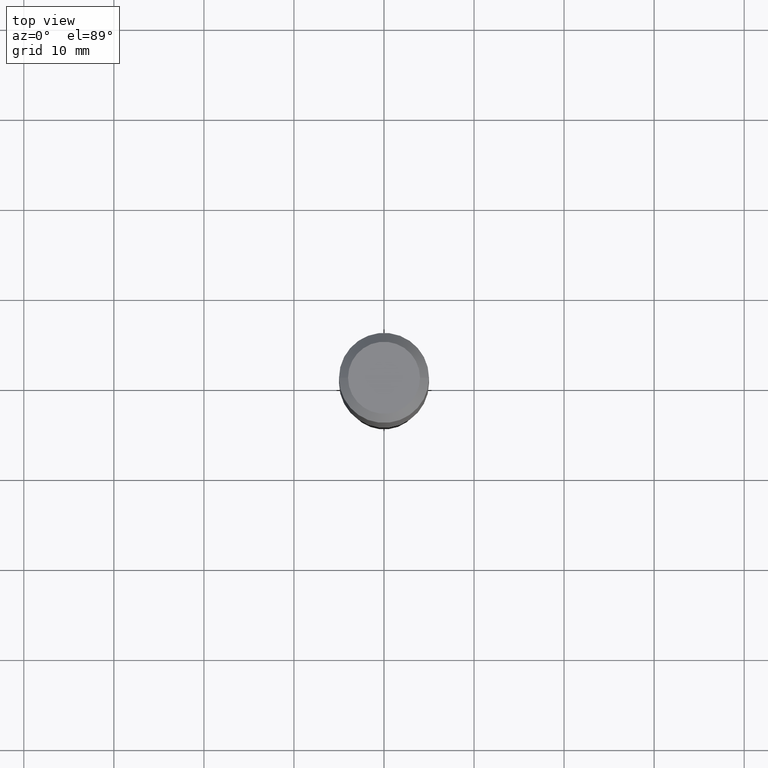
[diagram: clean part render]
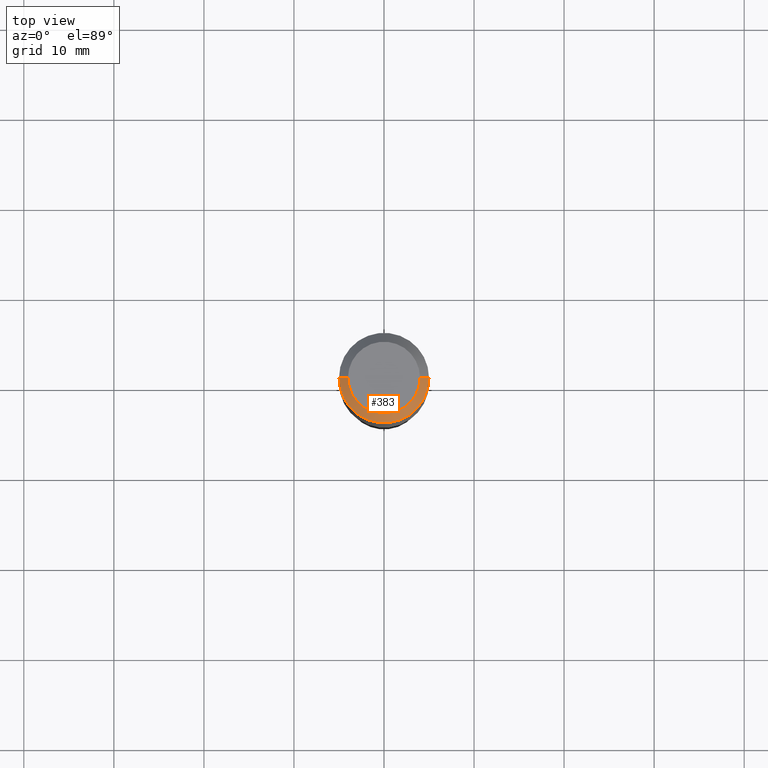
[diagram: same view with one face highlighted and labeled with its STEP entity id]
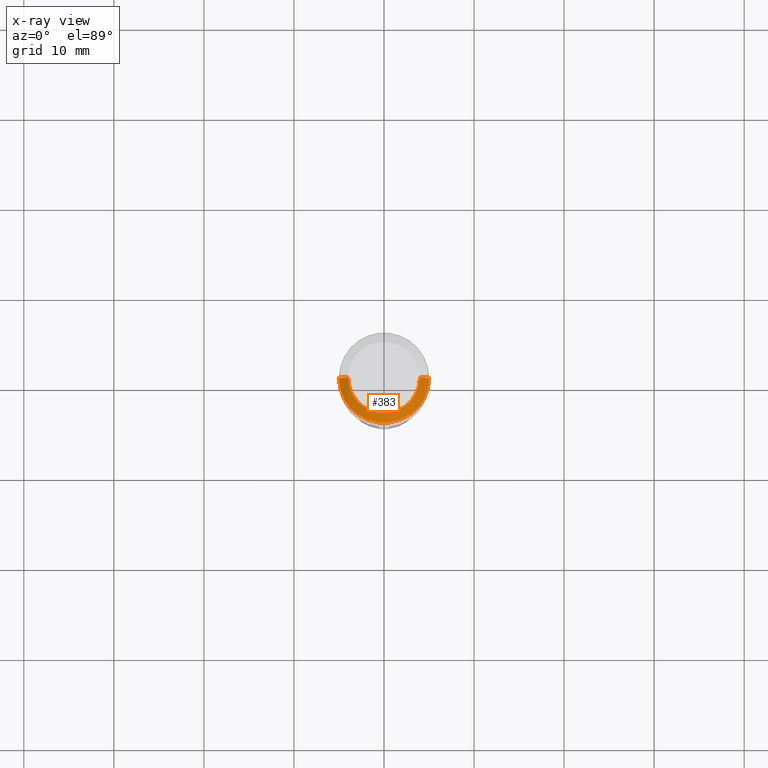
[diagram: x-ray of the same camera — body ghosted, the highlighted face saturated]
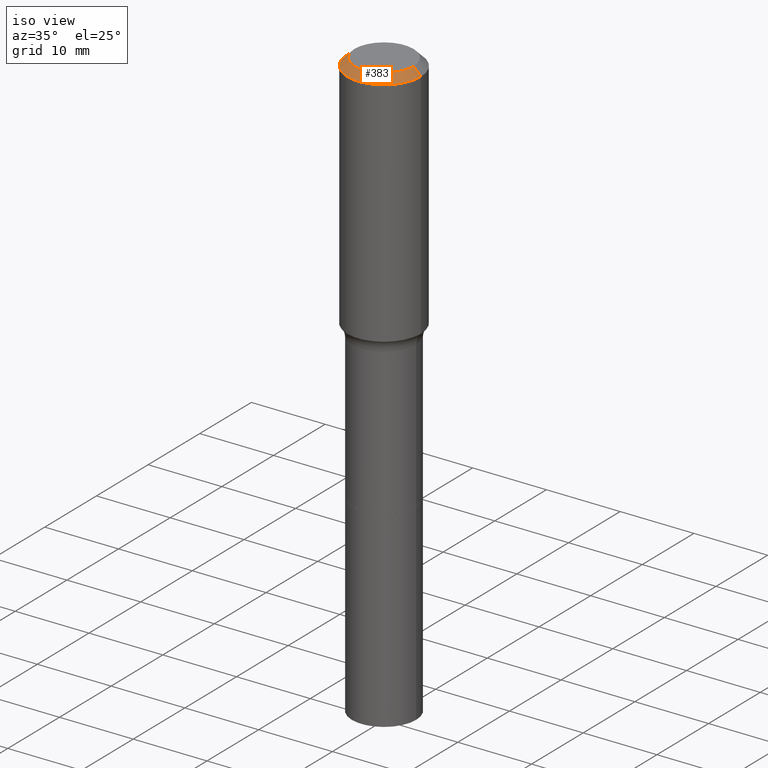
[diagram: same view with one face highlighted and labeled with its STEP entity id]
A machine part, top view. The second image highlights one B-rep face of the part: STEP entity #383.
The next image is the same camera in x-ray: the body ghosted, the highlighted face saturated — about 0% of this face is hidden behind the body in this view.
A second angle (iso view) of the same face is appended — the face is thin or edge-on in the first view.
In plain terms, the highlighted conical surface has half-angle 45 deg.
Its self-contained STEP definition (entity closure, byte-faithful):
#29 = FACE_OUTER_BOUND ( 'NONE', #478, .T. ) ;
#31 = DIRECTION ( 'NONE',  ( -1.000000000000000000, 6.982962677686266711E-15, 0.000000000000000000 ) ) ;
#39 = CARTESIAN_POINT ( 'NONE',  ( -0.1968500000000000527, 1.237136582792286422E-15, -0.03937000000000030059 ) ) ;
#44 = CIRCLE ( 'NONE', #251, 0.1968500000000000527 ) ;
#47 = ORIENTED_EDGE ( 'NONE', *, *, #326, .T. ) ;
#79 = EDGE_CURVE ( 'NONE', #391, #405, #374, .T. ) ;
#107 = ORIENTED_EDGE ( 'NONE', *, *, #194, .F. ) ;
#120 = AXIS2_PLACEMENT_3D ( 'NONE', #252, #175, #136 ) ;
#125 = CARTESIAN_POINT ( 'NONE',  ( 0.1968500000000000527, -1.512055823412797583E-15, -0.03937000000000030059 ) ) ;
#136 = DIRECTION ( 'NONE',  ( 1.000000000000000000, -6.982962677686265922E-15, 4.876223630392693006E-29 ) ) ;
#144 = DIRECTION ( 'NONE',  ( -2.445468806185136597E-29, 3.491481338843145583E-15, 1.000000000000000000 ) ) ;
#158 = CARTESIAN_POINT ( 'NONE',  ( -0.1968500000000000527, -9.039364635632571956E-16, -0.03937000000000030059 ) ) ;
#168 = VERTEX_POINT ( 'NONE', #210 ) ;
#175 = DIRECTION ( 'NONE',  ( -2.445468806185136597E-29, 3.491481338843145583E-15, 1.000000000000000000 ) ) ;
#178 = DIRECTION ( 'NONE',  ( 1.000000000000000000, -6.982962677686266711E-15, 0.000000000000000000 ) ) ;
#180 = DIRECTION ( 'NONE',  ( 2.445468806185136597E-29, -3.491481338843145583E-15, -1.000000000000000000 ) ) ;
#182 = VECTOR ( 'NONE', #285, 39.37007874015748143 ) ;
#194 = EDGE_CURVE ( 'NONE', #168, #391, #464, .T. ) ;
#210 = CARTESIAN_POINT ( 'NONE',  ( -0.1574800000000000089, 1.168406772637159815E-15, 3.855188123707939751E-18 ) ) ;
#213 = CARTESIAN_POINT ( 'NONE',  ( 0.1968500000000000527, -1.487948651171581996E-15, -0.03937000000000030059 ) ) ;
#251 = AXIS2_PLACEMENT_3D ( 'NONE', #381, #144, #178 ) ;
#252 = CARTESIAN_POINT ( 'NONE',  ( -9.427742298522567634E-47, 1.346031739168368355E-32, 3.855188123715870730E-18 ) ) ;
#285 = DIRECTION ( 'NONE',  ( -0.7071067811865452413, 2.468850131082233000E-15, -0.7071067811865497932 ) ) ;
#289 = AXIS2_PLACEMENT_3D ( 'NONE', #384, #180, #31 ) ;
#313 = ORIENTED_EDGE ( 'NONE', *, *, #79, .F. ) ;
#324 = ORIENTED_EDGE ( 'NONE', *, *, #450, .T. ) ;
#325 = LINE ( 'NONE', #39, #182 ) ;
#326 = EDGE_CURVE ( 'NONE', #394, #405, #44, .T. ) ;
#344 = VECTOR ( 'NONE', #369, 39.37007874015748143 ) ;
#369 = DIRECTION ( 'NONE',  ( 0.7071067811865452413, -7.319954787623248157E-15, -0.7071067811865497932 ) ) ;
#374 = LINE ( 'NONE', #213, #344 ) ;
#381 = CARTESIAN_POINT ( 'NONE',  ( 9.627810689950955906E-31, -1.374596203102556794E-16, -0.03937000000000030059 ) ) ;
#383 = ADVANCED_FACE ( 'NONE', ( #29 ), #425, .T. ) ;
#384 = CARTESIAN_POINT ( 'NONE',  ( 9.627810689950955906E-31, -1.374596203102556794E-16, -0.03937000000000030059 ) ) ;
#391 = VERTEX_POINT ( 'NONE', #499 ) ;
#394 = VERTEX_POINT ( 'NONE', #158 ) ;
#405 = VERTEX_POINT ( 'NONE', #125 ) ;
#425 = CONICAL_SURFACE ( 'NONE', #289, 0.1968500000000000527, 0.7853981633974450594 ) ;
#450 = EDGE_CURVE ( 'NONE', #168, #394, #325, .T. ) ;
#464 = CIRCLE ( 'NONE', #120, 0.1574800000000000089 ) ;
#478 = EDGE_LOOP ( 'NONE', ( #313, #107, #324, #47 ) ) ;
#499 = CARTESIAN_POINT ( 'NONE',  ( 0.1574800000000000089, -1.284169937930321386E-15, 3.855188123724205385E-18 ) ) ;